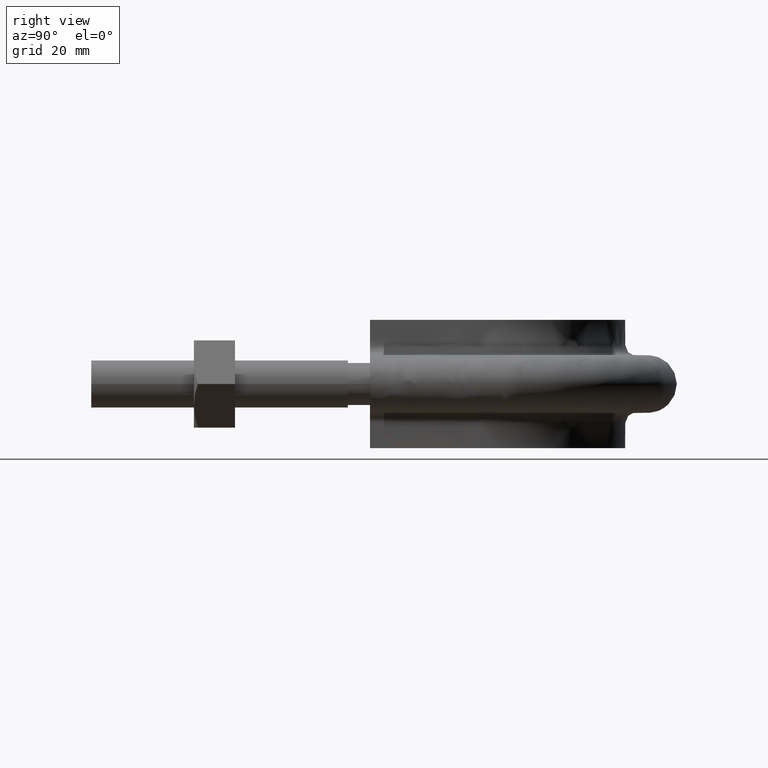
[diagram: clean part render]
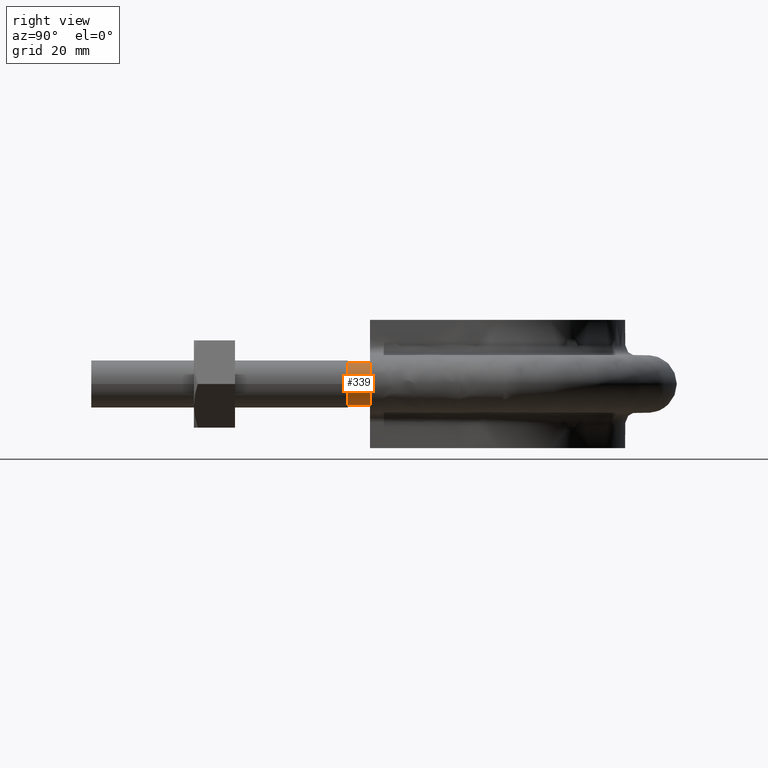
[diagram: same view with one face highlighted and labeled with its STEP entity id]
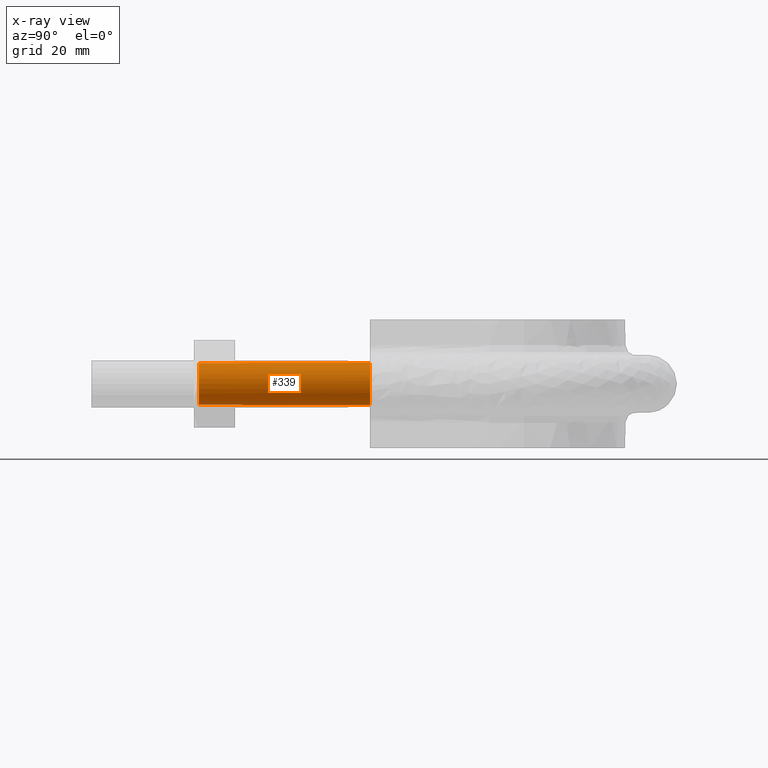
[diagram: x-ray of the same camera — body ghosted, the highlighted face saturated]
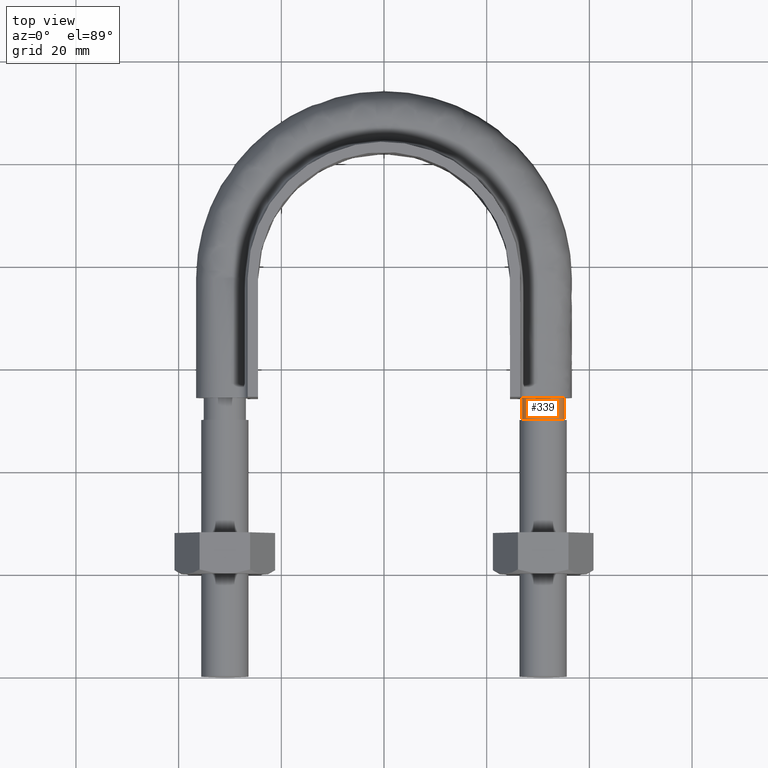
[diagram: same view with one face highlighted and labeled with its STEP entity id]
A machine part, right view. The second image highlights one B-rep face of the part: STEP entity #339.
The next image is the same camera in x-ray: the body ghosted, the highlighted face saturated — about 0% of this face is hidden behind the body in this view.
A second angle (top view) of the same face is appended — the face is thin or edge-on in the first view.
In plain terms, the highlighted cylindrical surface (bore or boss wall) has radius 4.1 mm, axis along (0, 1, 0).
Its self-contained STEP definition (entity closure, byte-faithful):
#339 = ADVANCED_FACE( '', ( #447, #448 ), #449, .T. );
#447 = FACE_OUTER_BOUND( '', #1446, .T. );
#448 = FACE_OUTER_BOUND( '', #1447, .T. );
#449 = CYLINDRICAL_SURFACE( '', #1448, 4.10000000000000 );
#1446 = EDGE_LOOP( '', ( #1723, #1724, #1725, #1726, #1727, #1728, #1729 ) );
#1447 = EDGE_LOOP( '', ( #1730 ) );
#1448 = AXIS2_PLACEMENT_3D( '', #1731, #1732, #1733 );
#1723 = ORIENTED_EDGE( '', *, *, #2149, .T. );
#1724 = ORIENTED_EDGE( '', *, *, #2154, .T. );
#1725 = ORIENTED_EDGE( '', *, *, #2150, .T. );
#1726 = ORIENTED_EDGE( '', *, *, #2125, .T. );
#1727 = ORIENTED_EDGE( '', *, *, #2151, .T. );
#1728 = ORIENTED_EDGE( '', *, *, #2152, .T. );
#1729 = ORIENTED_EDGE( '', *, *, #2148, .T. );
#1730 = ORIENTED_EDGE( '', *, *, #2153, .F. );
#1731 = CARTESIAN_POINT( '', ( 31.0000000000000, 54.3000000000000, 1.03938464280674E-014 ) );
#1732 = DIRECTION( '', ( 2.44921270764475E-016, 1.00000000000000, 3.06151588455594E-016 ) );
#1733 = DIRECTION( '', ( 1.00000000000000, -2.44921270764475E-016, -3.74915180455534E-032 ) );
#2125 = EDGE_CURVE( '', #2287, #2288, #2289, .T. );
#2148 = EDGE_CURVE( '', #2320, #2318, #2325, .T. );
#2149 = EDGE_CURVE( '', #2318, #2316, #2326, .T. );
#2150 = EDGE_CURVE( '', #2314, #2287, #2327, .T. );
#2151 = EDGE_CURVE( '', #2288, #2322, #2328, .T. );
#2152 = EDGE_CURVE( '', #2322, #2320, #2329, .T. );
#2153 = EDGE_CURVE( '', #2330, #2330, #2331, .T. );
#2154 = EDGE_CURVE( '', #2316, #2314, #2332, .T. );
#2287 = VERTEX_POINT( '', #2735 );
#2288 = VERTEX_POINT( '', #2736 );
#2289 = CIRCLE( '', #2737, 4.10000000000000 );
#2314 = VERTEX_POINT( '', #2786 );
#2316 = VERTEX_POINT( '', #2791 );
#2318 = VERTEX_POINT( '', #2796 );
#2320 = VERTEX_POINT( '', #2801 );
#2322 = VERTEX_POINT( '', #2806 );
#2325 = CIRCLE( '', #2815, 4.10000000000000 );
#2326 = CIRCLE( '', #2816, 4.10000000000000 );
#2327 = CIRCLE( '', #2817, 4.10000000000000 );
#2328 = CIRCLE( '', #2818, 4.10000000000000 );
#2329 = CIRCLE( '', #2819, 4.10000000000000 );
#2330 = VERTEX_POINT( '', #2820 );
#2331 = CIRCLE( '', #2821, 4.10000000000000 );
#2332 = CIRCLE( '', #2822, 4.10000000000000 );
#2735 = CARTESIAN_POINT( '', ( 26.9000000000000, 54.3000000000000, -2.58256698510804E-013 ) );
#2736 = CARTESIAN_POINT( '', ( 28.4436918123816, 54.3000000000000, -3.20550907812088 ) );
#2737 = AXIS2_PLACEMENT_3D( '', #3165, #3166, #3167 );
#2786 = CARTESIAN_POINT( '', ( 28.4436918123792, 54.3000000000000, 3.20550907811889 ) );
#2791 = CARTESIAN_POINT( '', ( 31.9123358292210, 54.3000000000000, 3.99720443994545 ) );
#2796 = CARTESIAN_POINT( '', ( 34.6939723584000, 54.3000000000000, 1.77892333038190 ) );
#2801 = CARTESIAN_POINT( '', ( 34.6939723583999, 54.3000000000000, -1.77892333038200 ) );
#2806 = CARTESIAN_POINT( '', ( 31.9123358292214, 54.3000000000000, -3.99720443994537 ) );
#2815 = AXIS2_PLACEMENT_3D( '', #3192, #3193, #3194 );
#2816 = AXIS2_PLACEMENT_3D( '', #3195, #3196, #3197 );
#2817 = AXIS2_PLACEMENT_3D( '', #3198, #3199, #3200 );
#2818 = AXIS2_PLACEMENT_3D( '', #3201, #3202, #3203 );
#2819 = AXIS2_PLACEMENT_3D( '', #3204, #3205, #3206 );
#2820 = CARTESIAN_POINT( '', ( 35.1000000000000, 21.0000000000000, 1.98998532496135E-016 ) );
#2821 = AXIS2_PLACEMENT_3D( '', #3207, #3208, #3209 );
#2822 = AXIS2_PLACEMENT_3D( '', #3210, #3211, #3212 );
#3165 = CARTESIAN_POINT( '', ( 31.0000000000000, 54.3000000000000, 1.03938464280674E-014 ) );
#3166 = DIRECTION( '', ( -2.44921270764475E-016, -1.00000000000000, -3.06151588455594E-016 ) );
#3167 = DIRECTION( '', ( 1.00000000000000, -2.44921270764475E-016, -3.16197804102265E-032 ) );
#3192 = CARTESIAN_POINT( '', ( 31.0000000000000, 54.3000000000000, 1.03938464280674E-014 ) );
#3193 = DIRECTION( '', ( -2.44921270764475E-016, -1.00000000000000, -3.06151588455594E-016 ) );
#3194 = DIRECTION( '', ( 1.00000000000000, -2.44921270764475E-016, -3.16197804102265E-032 ) );
#3195 = CARTESIAN_POINT( '', ( 31.0000000000000, 54.3000000000000, 1.03938464280674E-014 ) );
#3196 = DIRECTION( '', ( -2.44921270764475E-016, -1.00000000000000, -3.06151588455594E-016 ) );
#3197 = DIRECTION( '', ( 1.00000000000000, -2.44921270764475E-016, -3.16197804102265E-032 ) );
#3198 = CARTESIAN_POINT( '', ( 31.0000000000000, 54.3000000000000, 1.03938464280674E-014 ) );
#3199 = DIRECTION( '', ( -2.44921270764475E-016, -1.00000000000000, -3.06151588455594E-016 ) );
#3200 = DIRECTION( '', ( 1.00000000000000, -2.44921270764475E-016, -3.16197804102265E-032 ) );
#3201 = CARTESIAN_POINT( '', ( 31.0000000000000, 54.3000000000000, 1.03938464280674E-014 ) );
#3202 = DIRECTION( '', ( -2.44921270764475E-016, -1.00000000000000, -3.06151588455594E-016 ) );
#3203 = DIRECTION( '', ( 1.00000000000000, -2.44921270764475E-016, -3.16197804102265E-032 ) );
#3204 = CARTESIAN_POINT( '', ( 31.0000000000000, 54.3000000000000, 1.03938464280674E-014 ) );
#3205 = DIRECTION( '', ( -2.44921270764475E-016, -1.00000000000000, -3.06151588455594E-016 ) );
#3206 = DIRECTION( '', ( 1.00000000000000, -2.44921270764475E-016, -3.16197804102265E-032 ) );
#3207 = CARTESIAN_POINT( '', ( 31.0000000000000, 21.0000000000000, 1.98998532496135E-016 ) );
#3208 = DIRECTION( '', ( -2.44921270764475E-016, -1.00000000000000, -3.06151588455594E-016 ) );
#3209 = DIRECTION( '', ( 1.00000000000000, -2.44921270764475E-016, -3.16197804102265E-032 ) );
#3210 = CARTESIAN_POINT( '', ( 31.0000000000000, 54.3000000000000, 1.03938464280674E-014 ) );
#3211 = DIRECTION( '', ( -2.44921270764475E-016, -1.00000000000000, -3.06151588455594E-016 ) );
#3212 = DIRECTION( '', ( 1.00000000000000, -2.44921270764475E-016, -3.16197804102265E-032 ) );